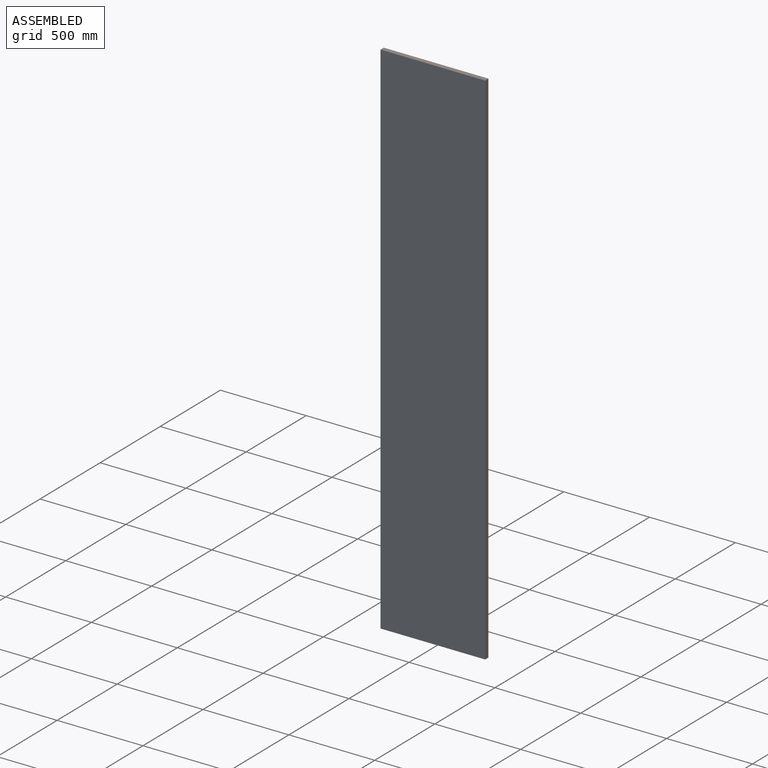
[diagram: assembled view]
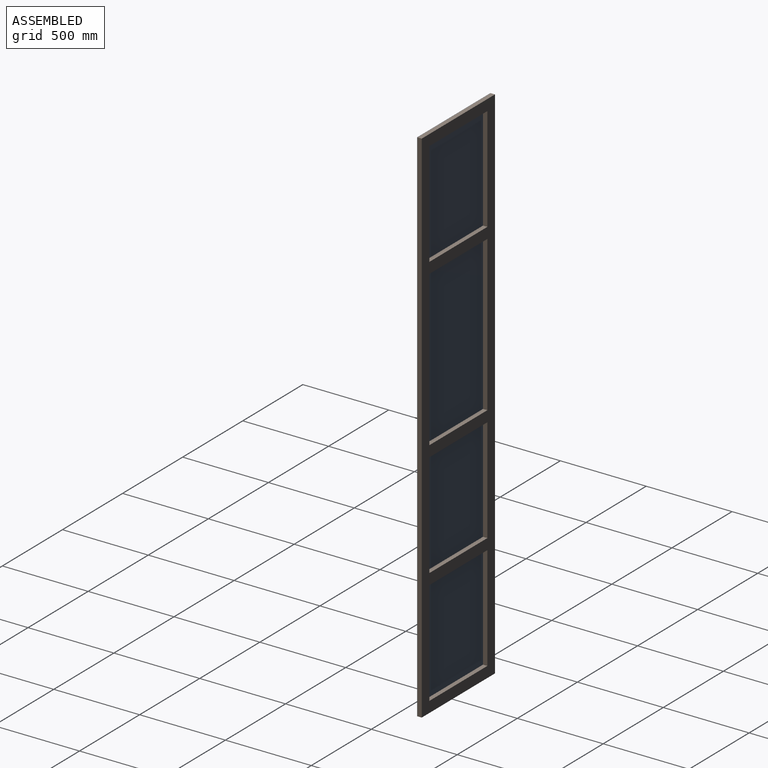
[diagram: assembled view, second angle]
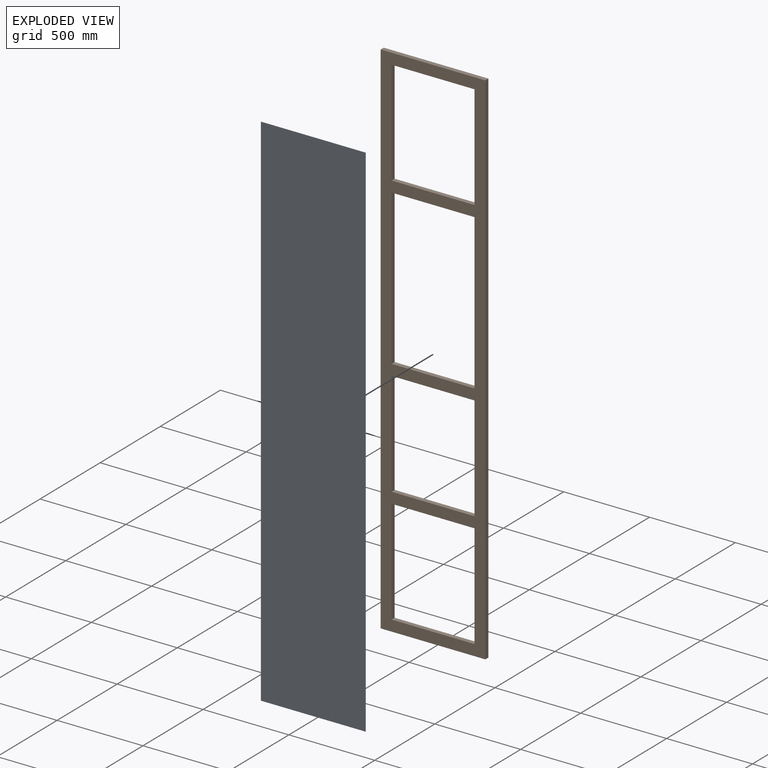
[diagram: exploded view]
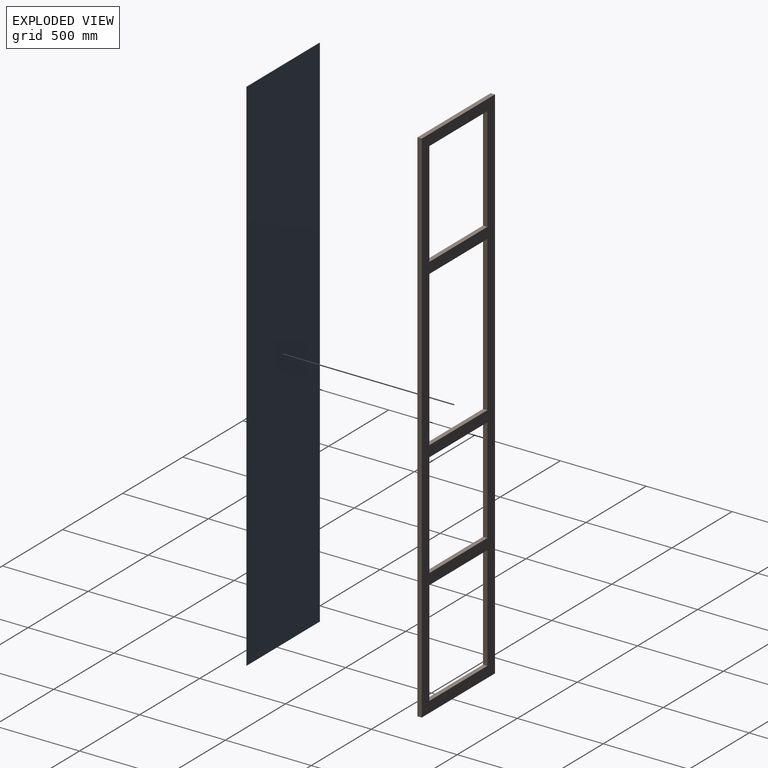
[diagram: exploded view, second angle]
ASSEMBLY  parts=2 mates=3
PART A: 6 faces, bbox 609.6x1.6x3048 mm
  f0: plane 3048x1.59mm, normal (-1,0,0), area 4838.7mm2, adj f1,f3,f4,f5
  f1: plane 609.6x1.59mm, normal (0,0,-1), area 967.7mm2, adj f0,f2,f4,f5
  f2: plane 3048x1.59mm, normal (1,0,0), area 4838.7mm2, adj f1,f3,f4,f5
  f3: plane 609.6x1.59mm, normal (0,0,1), area 967.7mm2, adj f0,f2,f4,f5
  f4: plane 3048x609.6mm, normal (0,-1,0), area 1858060.8mm2, adj f0,f1,f2,f3
  f5: plane 3048x609.6mm, normal (0,1,0), area 1858060.8mm2, adj f0,f1,f2,f3
PART B: 22 faces, bbox 609.6x25.4x3048 mm
  f0: plane 482.6x25.4mm, normal (0,0,-1), area 12258mm2, adj f1,f19,f20,f21
  f1: plane 609.6x25.4mm, normal (-1,0,0), area 15483.8mm2, adj f0,f2,f20,f21
  f2: plane 482.6x25.4mm, normal (0,0,1), area 12258mm2, adj f1,f19,f20,f21
  f3: plane 3048x25.4mm, normal (-1,0,0), area 77419.2mm2, adj f4,f15,f20,f21
  f4: plane 609.6x25.4mm, normal (0,0,-1), area 15483.8mm2, adj f3,f5,f20,f21
  f5: plane 3048x25.4mm, normal (1,0,0), area 77419.2mm2, adj f4,f15,f20,f21
  f6: plane 609.6x25.4mm, normal (-1,0,0), area 15483.8mm2, adj f7,f16,f20,f21
  f7: plane 482.6x25.4mm, normal (0,0,1), area 12258mm2, adj f6,f8,f20,f21
  f8: plane 609.6x25.4mm, normal (1,0,0), area 15483.8mm2, adj f7,f16,f20,f21
  f9: plane 901.7x25.4mm, normal (-1,0,0), area 22903.2mm2, adj f10,f17,f20,f21
  f10: plane 482.6x25.4mm, normal (0,0,1), area 12258mm2, adj f9,f11,f20,f21
  f11: plane 901.7x25.4mm, normal (1,0,0), area 22903.2mm2, adj f10,f17,f20,f21
  f12: plane 609.6x25.4mm, normal (-1,0,0), area 15483.8mm2, adj f13,f18,f20,f21
  f13: plane 482.6x25.4mm, normal (0,0,1), area 12258mm2, adj f12,f14,f20,f21
  f14: plane 609.6x25.4mm, normal (1,0,0), area 15483.8mm2, adj f13,f18,f20,f21
  f15: plane 609.6x25.4mm, normal (0,0,1), area 15483.8mm2, adj f3,f5,f20,f21
  f16: plane 482.6x25.4mm, normal (0,0,-1), area 12258mm2, adj f6,f8,f20,f21
  f17: plane 482.6x25.4mm, normal (0,0,-1), area 12258mm2, adj f9,f11,f20,f21
  f18: plane 482.6x25.4mm, normal (0,0,-1), area 12258mm2, adj f12,f14,f20,f21
  f19: plane 609.6x25.4mm, normal (1,0,0), area 15483.8mm2, adj f0,f2,f20,f21
  f20: plane 3048x609.6mm, normal (0,-1,0), area 540321.5mm2, adj f0,f1,f2,f3,f4,f5,f6,f7
  f21: plane 3048x609.6mm, normal (0,1,0), area 540321.5mm2, adj f0,f1,f2,f3,f4,f5,f6,f7
PLACE A t=(-1272.91,153.6,-436.32)mm
PLACE B t=(-1272.91,179,-436.32)mm
MATE planar A.f5 <-> B.f20  axis (0,1,0) through (-968.11,153.6,1087.68)mm
MATE planar A.f3 <-> B.f15  axis (0,0,1) through (-968.11,152.81,2611.68)mm
MATE planar A.f2 <-> B.f5  axis (1,0,0) through (-663.31,152.81,1087.68)mm
